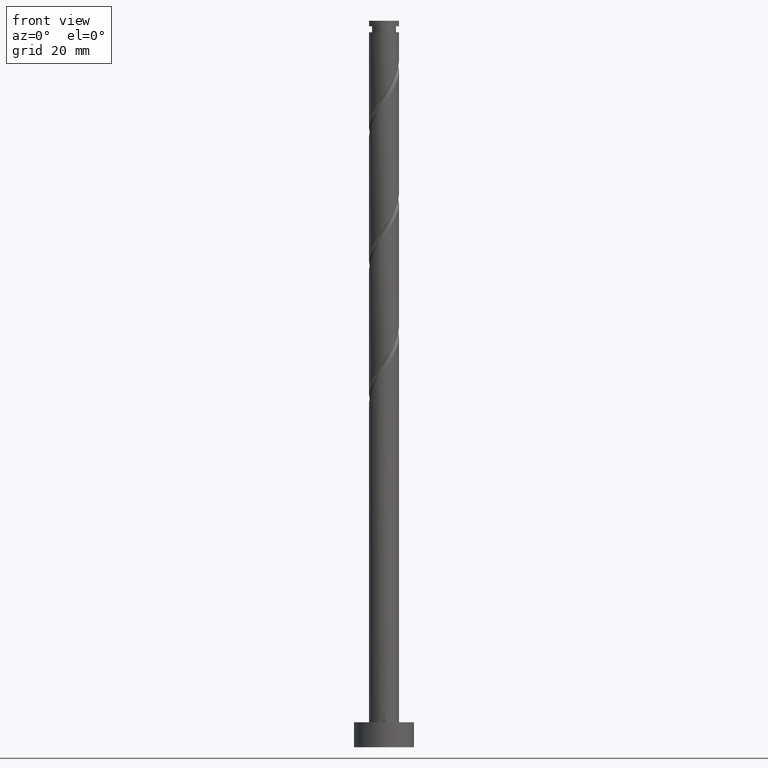
[diagram: clean part render]
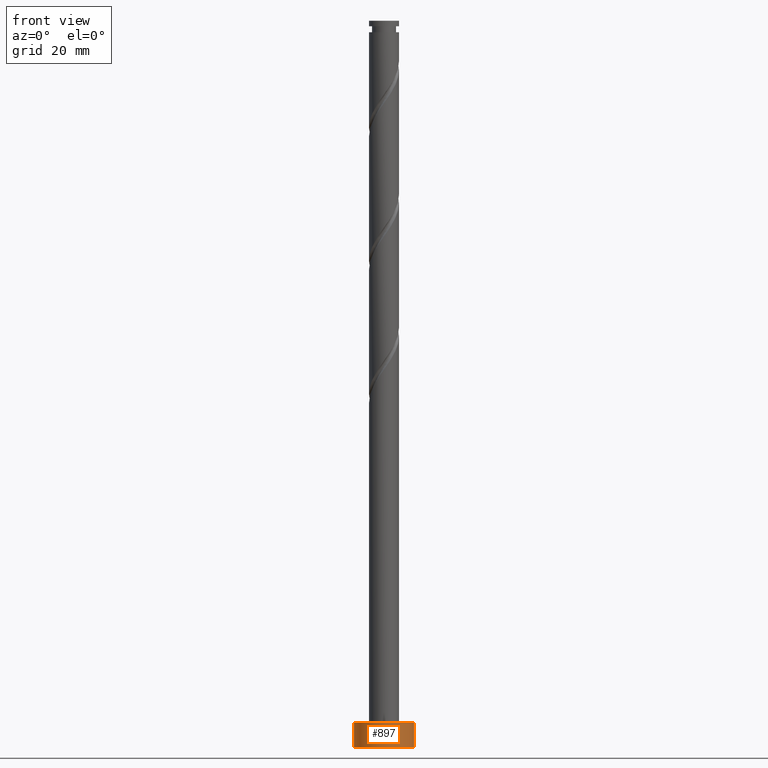
[diagram: same view with one face highlighted and labeled with its STEP entity id]
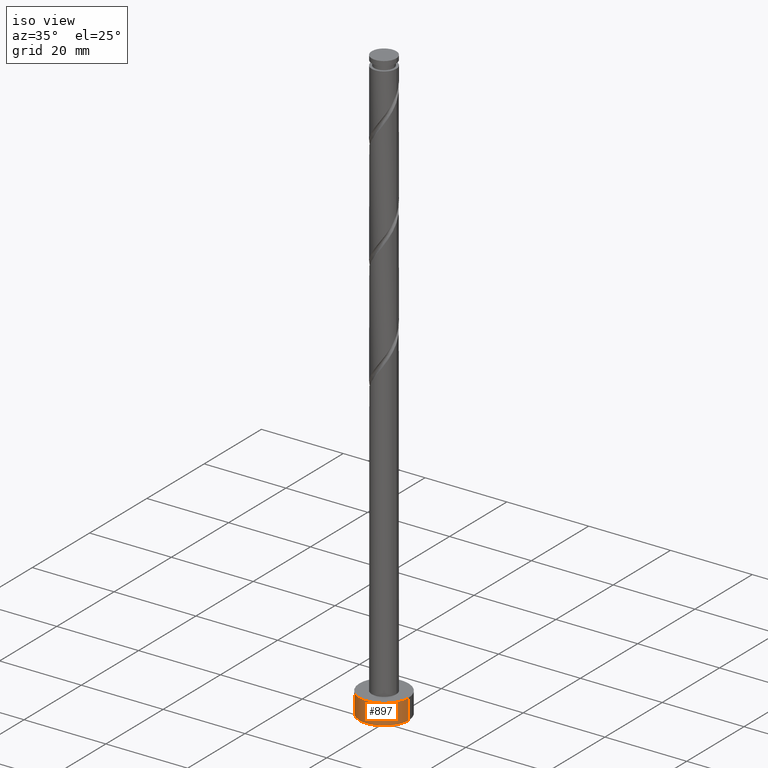
[diagram: same view with one face highlighted and labeled with its STEP entity id]
A machine part, front view. The second image highlights one B-rep face of the part: STEP entity #897.
A second angle (iso view) of the same face is appended — the face is thin or edge-on in the first view.
In plain terms, the highlighted cylindrical surface (edge-blend (fillet) strip) has radius 6 mm, axis along (-0, -0, -1).
Its self-contained STEP definition (entity closure, byte-faithful):
#93 = CARTESIAN_POINT ( 'NONE',  ( -6.000000000000000888, 0.000000000000000000, 5.000000000000000000 ) ) ;
#100 = DIRECTION ( 'NONE',  ( -0.000000000000000000, -0.000000000000000000, -1.000000000000000000 ) ) ;
#129 = CIRCLE ( 'NONE', #186, 6.000000000000000888 ) ;
#183 = AXIS2_PLACEMENT_3D ( 'NONE', #1517, #377, #1266 ) ;
#186 = AXIS2_PLACEMENT_3D ( 'NONE', #845, #220, #469 ) ;
#220 = DIRECTION ( 'NONE',  ( 0.000000000000000000, 0.000000000000000000, 1.000000000000000000 ) ) ;
#221 = CARTESIAN_POINT ( 'NONE',  ( 6.000000000000000888, 7.347880794884120722E-16, 5.000000000000000000 ) ) ;
#242 = VERTEX_POINT ( 'NONE', #740 ) ;
#340 = EDGE_LOOP ( 'NONE', ( #1659, #425, #680, #1598 ) ) ;
#353 = DIRECTION ( 'NONE',  ( -1.000000000000000000, 0.000000000000000000, 0.000000000000000000 ) ) ;
#366 = VERTEX_POINT ( 'NONE', #1469 ) ;
#377 = DIRECTION ( 'NONE',  ( 0.000000000000000000, 0.000000000000000000, 1.000000000000000000 ) ) ;
#425 = ORIENTED_EDGE ( 'NONE', *, *, #1431, .F. ) ;
#469 = DIRECTION ( 'NONE',  ( 1.000000000000000000, 0.000000000000000000, 0.000000000000000000 ) ) ;
#487 = VECTOR ( 'NONE', #100, 1000.000000000000000 ) ;
#497 = DIRECTION ( 'NONE',  ( -0.000000000000000000, -0.000000000000000000, -1.000000000000000000 ) ) ;
#637 = CARTESIAN_POINT ( 'NONE',  ( 6.000000000000000888, 7.347880794884120722E-16, 5.000000000000000000 ) ) ;
#680 = ORIENTED_EDGE ( 'NONE', *, *, #1173, .T. ) ;
#705 = EDGE_CURVE ( 'NONE', #1518, #366, #868, .T. ) ;
#722 = LINE ( 'NONE', #93, #487 ) ;
#740 = CARTESIAN_POINT ( 'NONE',  ( -6.000000000000000888, 0.000000000000000000, 0.000000000000000000 ) ) ;
#845 = CARTESIAN_POINT ( 'NONE',  ( 0.000000000000000000, 0.000000000000000000, 0.000000000000000000 ) ) ;
#868 = LINE ( 'NONE', #221, #1599 ) ;
#897 = ADVANCED_FACE ( 'NONE', ( #1520 ), #1626, .T. ) ;
#1010 = CIRCLE ( 'NONE', #183, 6.000000000000000888 ) ;
#1025 = CARTESIAN_POINT ( 'NONE',  ( 0.000000000000000000, 0.000000000000000000, 5.000000000000000000 ) ) ;
#1173 = EDGE_CURVE ( 'NONE', #1195, #242, #722, .T. ) ;
#1195 = VERTEX_POINT ( 'NONE', #1368 ) ;
#1212 = EDGE_CURVE ( 'NONE', #242, #366, #129, .T. ) ;
#1266 = DIRECTION ( 'NONE',  ( 1.000000000000000000, 0.000000000000000000, 0.000000000000000000 ) ) ;
#1359 = AXIS2_PLACEMENT_3D ( 'NONE', #1025, #497, #353 ) ;
#1368 = CARTESIAN_POINT ( 'NONE',  ( -6.000000000000000888, 0.000000000000000000, 5.000000000000000000 ) ) ;
#1431 = EDGE_CURVE ( 'NONE', #1195, #1518, #1010, .T. ) ;
#1469 = CARTESIAN_POINT ( 'NONE',  ( 6.000000000000000888, 7.347880794884120722E-16, 0.000000000000000000 ) ) ;
#1517 = CARTESIAN_POINT ( 'NONE',  ( 0.000000000000000000, 0.000000000000000000, 5.000000000000000000 ) ) ;
#1518 = VERTEX_POINT ( 'NONE', #637 ) ;
#1520 = FACE_OUTER_BOUND ( 'NONE', #340, .T. ) ;
#1589 = DIRECTION ( 'NONE',  ( -0.000000000000000000, -0.000000000000000000, -1.000000000000000000 ) ) ;
#1598 = ORIENTED_EDGE ( 'NONE', *, *, #1212, .T. ) ;
#1599 = VECTOR ( 'NONE', #1589, 1000.000000000000000 ) ;
#1626 = CYLINDRICAL_SURFACE ( 'NONE', #1359, 6.000000000000000888 ) ;
#1659 = ORIENTED_EDGE ( 'NONE', *, *, #705, .F. ) ;